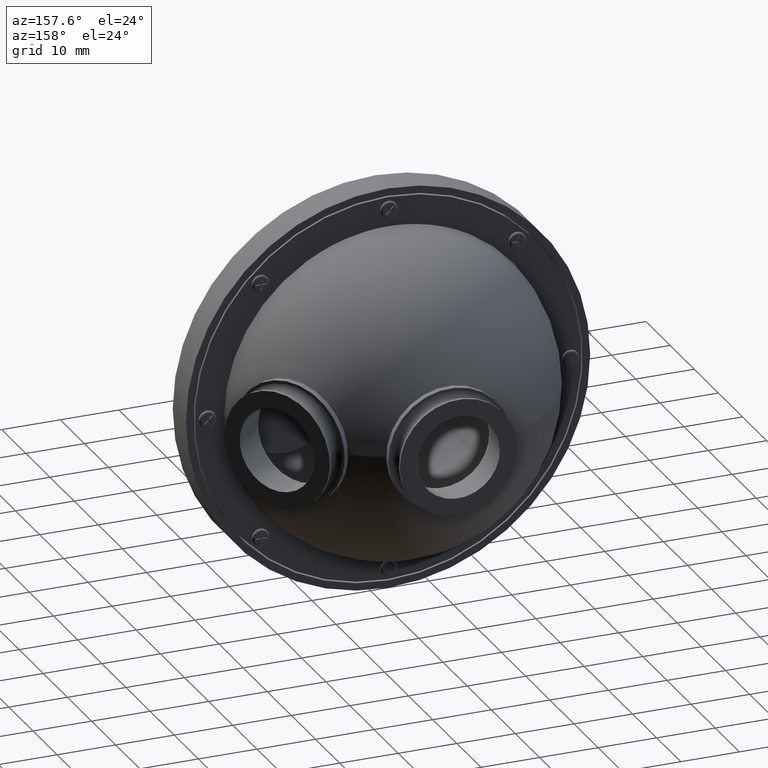
[diagram: clean part render]
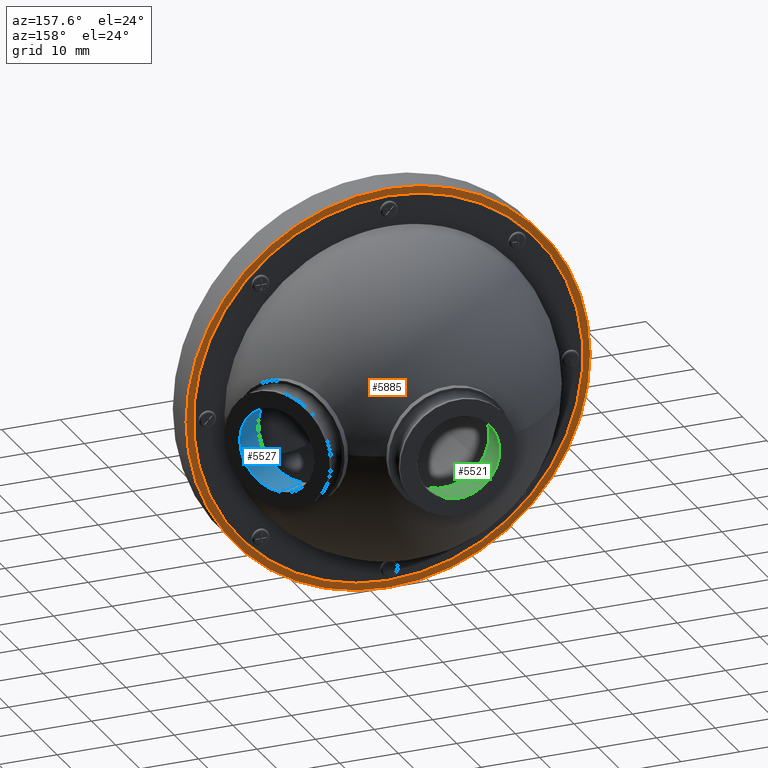
[diagram: same view with three faces highlighted in distinct colors, each labeled with its STEP entity id]
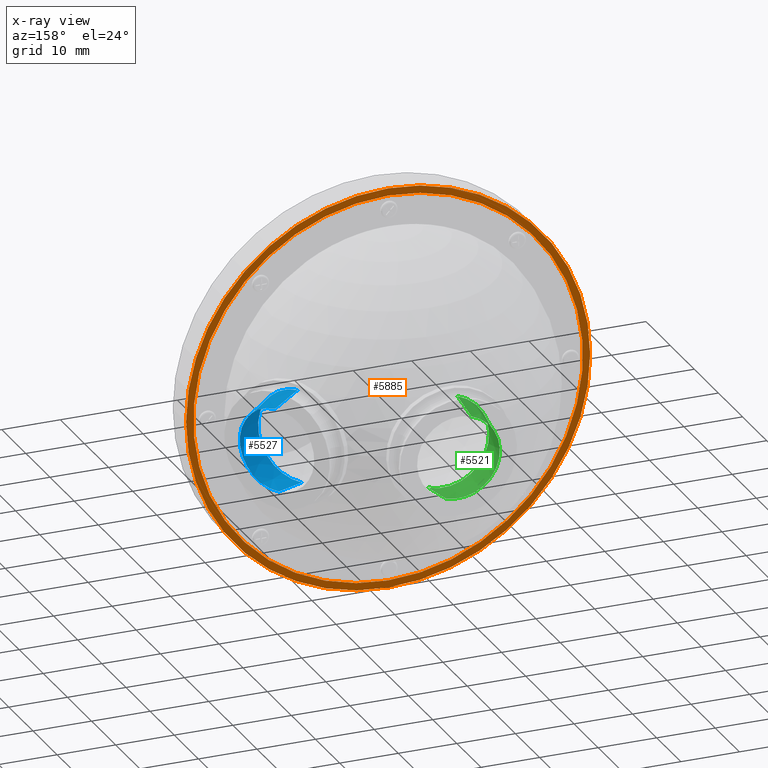
[diagram: x-ray of the same camera — body ghosted, the three highlighted faces saturated]
A machine part, auxiliary view with three faces highlighted in distinct colors.
The next image is the same camera in x-ray (body ghosted, the three faces saturated) — at least one of them is partly hidden behind the body in this view.
Their STEP definitions:

[orange] entity #5885 — the highlighted planar face has unit normal (0, 1, 0).
#45 = AXIS2_PLACEMENT_3D ( 'NONE', #3865, #2267, #797 ) ;
#117 = DIRECTION ( 'NONE',  ( 0.000000000000000000, 1.000000000000000000, 0.000000000000000000 ) ) ;
#174 = PLANE ( 'NONE',  #209 ) ;
#209 = AXIS2_PLACEMENT_3D ( 'NONE', #4611, #1156, #626 ) ;
#626 = DIRECTION ( 'NONE',  ( 0.000000000000000000, -0.000000000000000000, 1.000000000000000000 ) ) ;
#797 = DIRECTION ( 'NONE',  ( 0.000000000000000000, 0.000000000000000000, 1.000000000000000000 ) ) ;
#1092 = FACE_OUTER_BOUND ( 'NONE', #4726, .T. ) ;
#1156 = DIRECTION ( 'NONE',  ( 0.000000000000000000, 1.000000000000000000, 0.000000000000000000 ) ) ;
#1173 = VERTEX_POINT ( 'NONE', #1612 ) ;
#1248 = EDGE_CURVE ( 'NONE', #5114, #1250, #1818, .T. ) ;
#1250 = VERTEX_POINT ( 'NONE', #3345 ) ;
#1375 = CARTESIAN_POINT ( 'NONE',  ( 8.484018949608310933, -16.41086588718419748, -33.25000000000000000 ) ) ;
#1529 = ORIENTED_EDGE ( 'NONE', *, *, #2094, .F. ) ;
#1612 = CARTESIAN_POINT ( 'NONE',  ( 8.484018949608307381, -16.41086588718419748, 33.25000000000000000 ) ) ;
#1614 = DIRECTION ( 'NONE',  ( 0.000000000000000000, 1.000000000000000000, 0.000000000000000000 ) ) ;
#1618 = AXIS2_PLACEMENT_3D ( 'NONE', #3086, #117, #5084 ) ;
#1818 = CIRCLE ( 'NONE', #45, 34.49999999999999289 ) ;
#2034 = DIRECTION ( 'NONE',  ( 0.000000000000000000, 0.000000000000000000, 1.000000000000000000 ) ) ;
#2094 = EDGE_CURVE ( 'NONE', #1173, #4489, #3522, .T. ) ;
#2176 = ORIENTED_EDGE ( 'NONE', *, *, #3183, .T. ) ;
#2267 = DIRECTION ( 'NONE',  ( 0.000000000000000000, 1.000000000000000000, 0.000000000000000000 ) ) ;
#2270 = ORIENTED_EDGE ( 'NONE', *, *, #5497, .F. ) ;
#2552 = FACE_BOUND ( 'NONE', #5124, .T. ) ;
#3086 = CARTESIAN_POINT ( 'NONE',  ( 8.484018949608307381, -16.41086588718419748, 0.000000000000000000 ) ) ;
#3183 = EDGE_CURVE ( 'NONE', #1250, #5114, #6099, .T. ) ;
#3345 = CARTESIAN_POINT ( 'NONE',  ( 8.484018949608310933, -16.41086588718419748, 34.49999999999999289 ) ) ;
#3358 = DIRECTION ( 'NONE',  ( 0.000000000000000000, 1.000000000000000000, 0.000000000000000000 ) ) ;
#3522 = CIRCLE ( 'NONE', #6256, 33.25000000000000000 ) ;
#3865 = CARTESIAN_POINT ( 'NONE',  ( 8.484018949608307381, -16.41086588718419748, 0.000000000000000000 ) ) ;
#4304 = DIRECTION ( 'NONE',  ( 0.000000000000000000, 0.000000000000000000, 1.000000000000000000 ) ) ;
#4489 = VERTEX_POINT ( 'NONE', #1375 ) ;
#4611 = CARTESIAN_POINT ( 'NONE',  ( 8.484018949608307381, -16.41086588718419748, 0.000000000000000000 ) ) ;
#4726 = EDGE_LOOP ( 'NONE', ( #5678, #2176 ) ) ;
#4758 = CIRCLE ( 'NONE', #1618, 33.25000000000000000 ) ;
#5084 = DIRECTION ( 'NONE',  ( 0.000000000000000000, 0.000000000000000000, 1.000000000000000000 ) ) ;
#5114 = VERTEX_POINT ( 'NONE', #5627 ) ;
#5124 = EDGE_LOOP ( 'NONE', ( #1529, #2270 ) ) ;
#5444 = CARTESIAN_POINT ( 'NONE',  ( 8.484018949608307381, -16.41086588718419748, 0.000000000000000000 ) ) ;
#5497 = EDGE_CURVE ( 'NONE', #4489, #1173, #4758, .T. ) ;
#5627 = CARTESIAN_POINT ( 'NONE',  ( 8.484018949608307381, -16.41086588718419748, -34.49999999999999289 ) ) ;
#5678 = ORIENTED_EDGE ( 'NONE', *, *, #1248, .T. ) ;
#5885 = ADVANCED_FACE ( 'NONE', ( #2552, #1092 ), #174, .T. ) ;
#6099 = CIRCLE ( 'NONE', #6415, 34.49999999999999289 ) ;
#6256 = AXIS2_PLACEMENT_3D ( 'NONE', #6464, #1614, #2034 ) ;
#6415 = AXIS2_PLACEMENT_3D ( 'NONE', #5444, #3358, #4304 ) ;
#6464 = CARTESIAN_POINT ( 'NONE',  ( 8.484018949608307381, -16.41086588718419748, 0.000000000000000000 ) ) ;

[blue] entity #5527 — the highlighted conical surface has half-angle 7.326 deg.
#135 = DIRECTION ( 'NONE',  ( -0.8259207157317177694, -0.5492138188952290223, -0.1273544363566719295 ) ) ;
#320 = VERTEX_POINT ( 'NONE', #1187 ) ;
#649 = DIRECTION ( 'NONE',  ( 0.8290375725550409580, 0.5591929034707481261, -2.433599305267576412E-17 ) ) ;
#716 = CARTESIAN_POINT ( 'NONE',  ( 34.09912023584445961, -1.069607330969420955, 7.055017501242883071 ) ) ;
#766 = ORIENTED_EDGE ( 'NONE', *, *, #6222, .F. ) ;
#837 = CARTESIAN_POINT ( 'NONE',  ( 28.50808979949237809, -4.404459557081175980, 7.351547055859168382E-16 ) ) ;
#995 = EDGE_LOOP ( 'NONE', ( #2255, #766, #4075, #3354 ) ) ;
#1150 = CARTESIAN_POINT ( 'NONE',  ( 33.69454780635582836, -0.4698040380732080856, -7.055017501242882183 ) ) ;
#1187 = CARTESIAN_POINT ( 'NONE',  ( 28.73430673933789237, -4.739839962512526483, 7.889635345171515546 ) ) ;
#1602 = CARTESIAN_POINT ( 'NONE',  ( 33.89683402110014043, -0.7697056845213131604, 5.769707507435243283E-16 ) ) ;
#1674 = CARTESIAN_POINT ( 'NONE',  ( 28.28187285964686737, -4.069079151649825477, -7.889635345171515546 ) ) ;
#1710 = AXIS2_PLACEMENT_3D ( 'NONE', #6230, #649, #3730 ) ;
#2255 = ORIENTED_EDGE ( 'NONE', *, *, #3675, .F. ) ;
#2297 = DIRECTION ( 'NONE',  ( -0.8186175313365129380, -0.5600412350254110327, 0.1273544363566719573 ) ) ;
#2312 = CARTESIAN_POINT ( 'NONE',  ( 28.28187285964686737, -4.069079151649826365, -7.889635345171515546 ) ) ;
#2328 = CIRCLE ( 'NONE', #1710, 7.900000000000001243 ) ;
#2420 = CARTESIAN_POINT ( 'NONE',  ( 28.73430673933789237, -4.739839962512527372, 7.889635345171515546 ) ) ;
#2639 = VERTEX_POINT ( 'NONE', #1150 ) ;
#2714 = EDGE_CURVE ( 'NONE', #320, #6366, #2328, .T. ) ;
#2766 = DIRECTION ( 'NONE',  ( -0.02863505567664705390, 0.04245321587738613150, -0.9986880183761410734 ) ) ;
#3354 = ORIENTED_EDGE ( 'NONE', *, *, #2714, .F. ) ;
#3540 = AXIS2_PLACEMENT_3D ( 'NONE', #1602, #5032, #5596 ) ;
#3675 = EDGE_CURVE ( 'NONE', #4395, #320, #5936, .T. ) ;
#3730 = DIRECTION ( 'NONE',  ( 0.02863505567664705390, -0.04245321587738613150, 0.9986880183761410734 ) ) ;
#3746 = CONICAL_SURFACE ( 'NONE', #4686, 7.900000000000001243, 0.1278699185599999621 ) ;
#4002 = EDGE_CURVE ( 'NONE', #2639, #6366, #4155, .T. ) ;
#4075 = ORIENTED_EDGE ( 'NONE', *, *, #4002, .T. ) ;
#4155 = LINE ( 'NONE', #1674, #6118 ) ;
#4169 = CIRCLE ( 'NONE', #3540, 7.064285714285714057 ) ;
#4364 = FACE_OUTER_BOUND ( 'NONE', #995, .T. ) ;
#4395 = VERTEX_POINT ( 'NONE', #716 ) ;
#4686 = AXIS2_PLACEMENT_3D ( 'NONE', #837, #4765, #2766 ) ;
#4765 = DIRECTION ( 'NONE',  ( -0.8290375725550409580, -0.5591929034707481261, 2.433599305267576412E-17 ) ) ;
#5032 = DIRECTION ( 'NONE',  ( -0.8290375725550409580, -0.5591929034707481261, 2.433599305267576412E-17 ) ) ;
#5527 = ADVANCED_FACE ( 'NONE', ( #4364 ), #3746, .F. ) ;
#5596 = DIRECTION ( 'NONE',  ( 0.02863505567664729329, -0.04245321587738614538, 0.9986880183761410734 ) ) ;
#5936 = LINE ( 'NONE', #2420, #6382 ) ;
#6118 = VECTOR ( 'NONE', #135, 1000.000000000000000 ) ;
#6222 = EDGE_CURVE ( 'NONE', #2639, #4395, #4169, .T. ) ;
#6230 = CARTESIAN_POINT ( 'NONE',  ( 28.50808979949237809, -4.404459557081175980, 7.351547055859168382E-16 ) ) ;
#6366 = VERTEX_POINT ( 'NONE', #2312 ) ;
#6382 = VECTOR ( 'NONE', #2297, 1000.000000000000114 ) ;

[green] entity #5521 — the highlighted conical surface has half-angle 7.326 deg.
#149 = VECTOR ( 'NONE', #432, 1000.000000000000227 ) ;
#432 = DIRECTION ( 'NONE',  ( -0.03993670643068739090, -0.9918357753074260597, 0.1211067888261678632 ) ) ;
#489 = CARTESIAN_POINT ( 'NONE',  ( 6.009931201750880803, 6.242527774059833945, 7.502592206424537835 ) ) ;
#557 = CARTESIAN_POINT ( 'NONE',  ( 10.95810669746555632, 6.242527774059852597, -7.502592206424537835 ) ) ;
#672 = VERTEX_POINT ( 'NONE', #489 ) ;
#845 = DIRECTION ( 'NONE',  ( -0.3131756642857389528, -1.227812369245465089E-15, 0.9496952160031060242 ) ) ;
#1102 = CONICAL_SURFACE ( 'NONE', #2771, 7.900000000000000355, 0.1278699185599999621 ) ;
#1361 = EDGE_CURVE ( 'NONE', #5023, #672, #2513, .T. ) ;
#1679 = CARTESIAN_POINT ( 'NONE',  ( 8.484018949608218563, 6.242527774059843715, -1.169039476243052163E-28 ) ) ;
#2302 = DIRECTION ( 'NONE',  ( 0.3131756642857390083, 1.207718875680055525E-15, -0.9496952160031060242 ) ) ;
#2324 = LINE ( 'NONE', #2881, #6360 ) ;
#2388 = AXIS2_PLACEMENT_3D ( 'NONE', #1679, #3669, #3174 ) ;
#2446 = EDGE_CURVE ( 'NONE', #6168, #3883, #2324, .T. ) ;
#2513 = LINE ( 'NONE', #5933, #149 ) ;
#2771 = AXIS2_PLACEMENT_3D ( 'NONE', #5116, #5849, #2302 ) ;
#2881 = CARTESIAN_POINT ( 'NONE',  ( 10.95810669746555632, 6.242527774059852597, -7.502592206424537835 ) ) ;
#2940 = ORIENTED_EDGE ( 'NONE', *, *, #1361, .T. ) ;
#3100 = CARTESIAN_POINT ( 'NONE',  ( 6.271656578332510890, 12.74252777405983572, 6.708918347336227050 ) ) ;
#3118 = FACE_OUTER_BOUND ( 'NONE', #4711, .T. ) ;
#3174 = DIRECTION ( 'NONE',  ( -0.3131756642857390083, -1.207718875680055525E-15, 0.9496952160031060242 ) ) ;
#3207 = EDGE_CURVE ( 'NONE', #5023, #6168, #3237, .T. ) ;
#3230 = CIRCLE ( 'NONE', #2388, 7.900000000000000355 ) ;
#3237 = CIRCLE ( 'NONE', #5960, 7.064285714285714057 ) ;
#3669 = DIRECTION ( 'NONE',  ( -3.736410698672505044E-15, 1.000000000000000000, 1.798101496593930860E-29 ) ) ;
#3808 = DIRECTION ( 'NONE',  ( 0.03993670643069482246, -0.9918357753074258376, -0.1211067888261678632 ) ) ;
#3883 = VERTEX_POINT ( 'NONE', #557 ) ;
#4277 = CARTESIAN_POINT ( 'NONE',  ( 8.484018949608193694, 12.74252777405984460, -2.735034569971247374E-32 ) ) ;
#4448 = CARTESIAN_POINT ( 'NONE',  ( 10.69638132088387827, 12.74252777405985348, -6.708918347336227050 ) ) ;
#4711 = EDGE_LOOP ( 'NONE', ( #4982, #2940, #5342, #5878 ) ) ;
#4982 = ORIENTED_EDGE ( 'NONE', *, *, #3207, .F. ) ;
#5023 = VERTEX_POINT ( 'NONE', #3100 ) ;
#5116 = CARTESIAN_POINT ( 'NONE',  ( 8.484018949608218563, 6.242527774059843715, -1.169039476243052163E-28 ) ) ;
#5342 = ORIENTED_EDGE ( 'NONE', *, *, #5915, .F. ) ;
#5521 = ADVANCED_FACE ( 'NONE', ( #3118 ), #1102, .F. ) ;
#5849 = DIRECTION ( 'NONE',  ( 3.736410698672505044E-15, -1.000000000000000000, -1.798101496593930860E-29 ) ) ;
#5878 = ORIENTED_EDGE ( 'NONE', *, *, #2446, .F. ) ;
#5915 = EDGE_CURVE ( 'NONE', #3883, #672, #3230, .T. ) ;
#5933 = CARTESIAN_POINT ( 'NONE',  ( 6.009931201750880803, 6.242527774059833945, 7.502592206424537835 ) ) ;
#5960 = AXIS2_PLACEMENT_3D ( 'NONE', #4277, #6252, #845 ) ;
#6168 = VERTEX_POINT ( 'NONE', #4448 ) ;
#6252 = DIRECTION ( 'NONE',  ( 3.736410698672505044E-15, -1.000000000000000000, -1.798101496593930860E-29 ) ) ;
#6360 = VECTOR ( 'NONE', #3808, 1000.000000000000000 ) ;